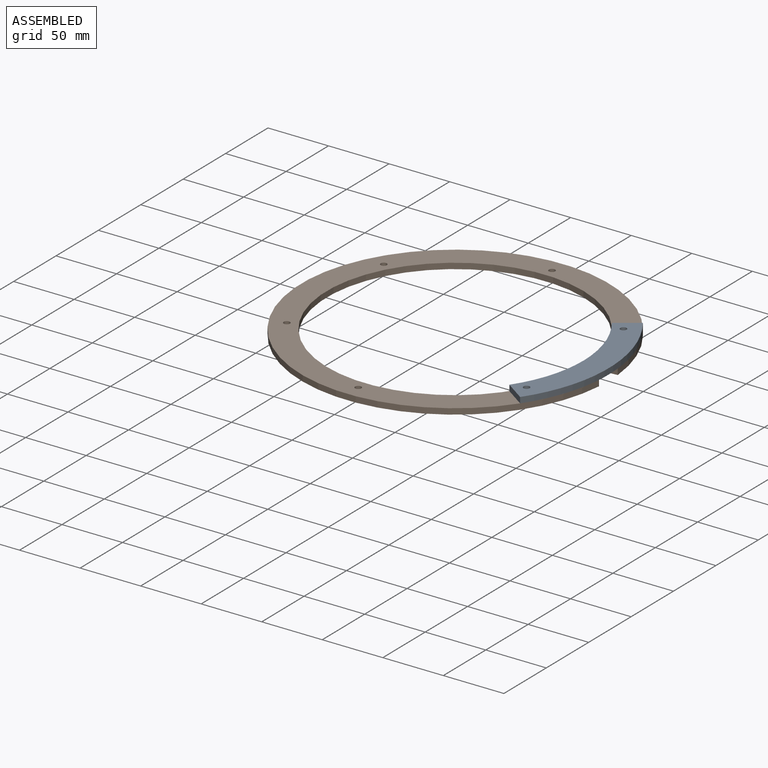
[diagram: assembled view]
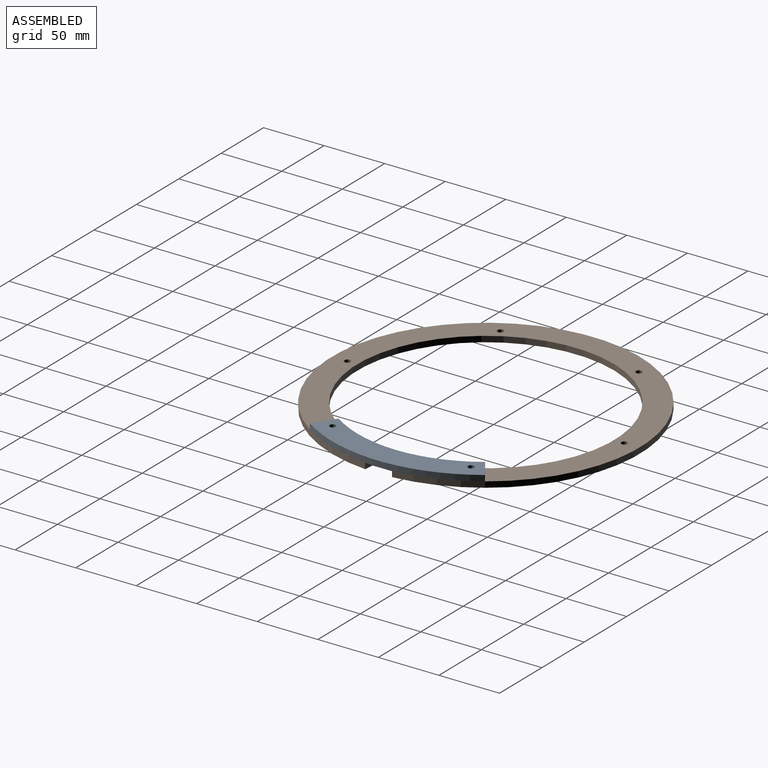
[diagram: assembled view, second angle]
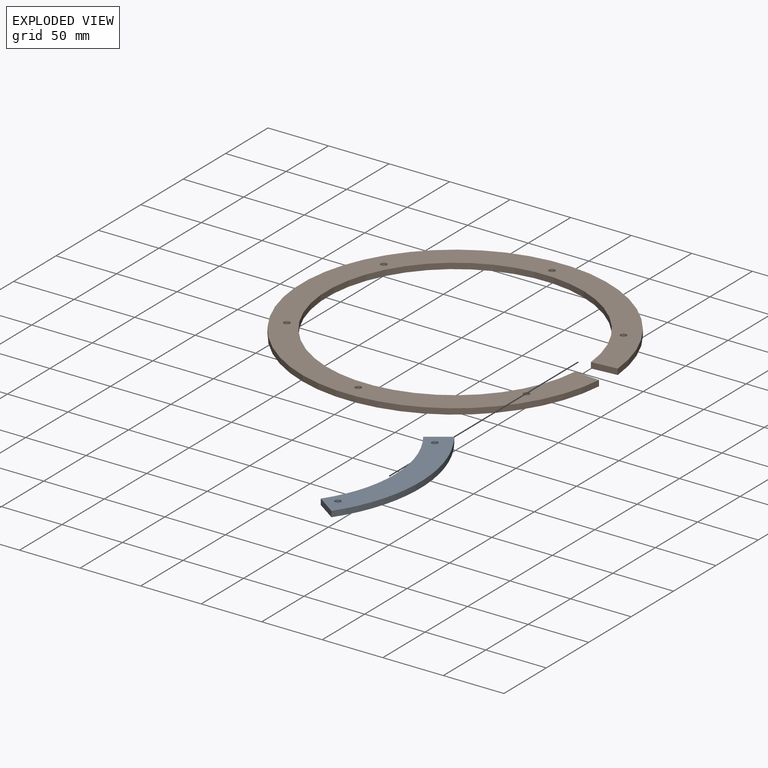
[diagram: exploded view]
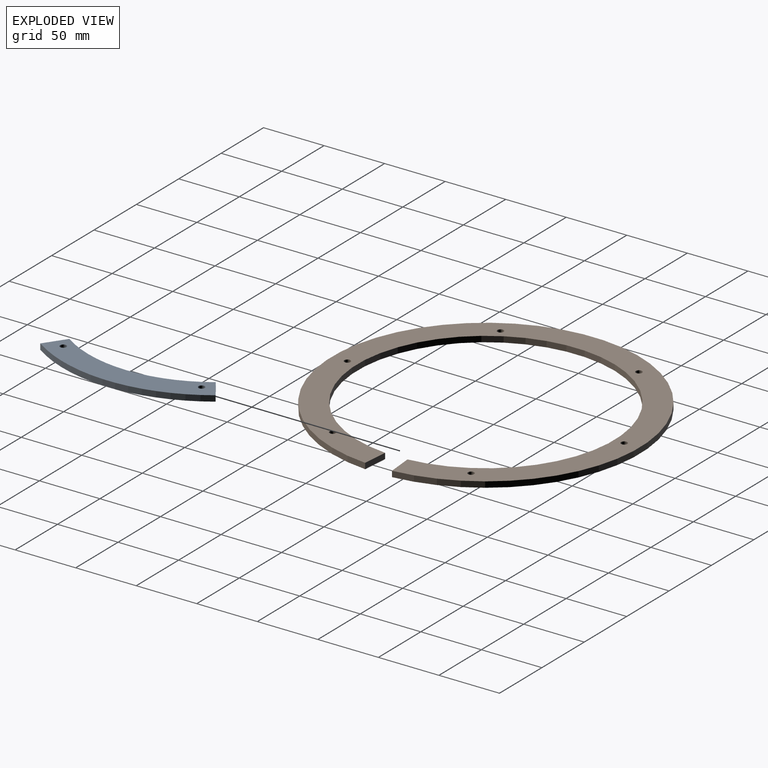
[diagram: exploded view, second angle]
ASSEMBLY  parts=2 mates=3
PART A: 8 faces, bbox 39.9x144.8x4.8 mm
  f0: plane 144.78x39.87mm, normal (0,0,-1), area 2920.9mm2, adj f1,f2,f3,f4,f6,f7
  f1: cylinder r=2.55mm len=5.11mm, axis (0,0,-1), area 76.4mm2, adj f0,f5
  f2: cylinder r=2.55mm len=5.11mm, axis (0,0,-1), area 76.4mm2, adj f0,f5
  f3: cylinder r=106.05mm len=120.89mm, axis (0,0,-1), area 612.6mm2, adj f0,f5,f6,f7
  f4: cylinder r=127mm len=144.78mm, axis (0,0,-1), area 733.7mm2, adj f0,f5,f6,f7
  f5: plane 144.78x39.87mm, normal (0,0,1), area 2920.9mm2, adj f1,f2,f3,f4,f6,f7
  f6: plane 17.22x11.94mm, normal (-0.57,0.82,0), area 99.8mm2, adj f0,f3,f4,f5
  f7: plane 17.22x11.94mm, normal (-0.57,-0.82,0), area 99.8mm2, adj f0,f3,f4,f5
PART B: 12 faces, bbox 253.5x254x4.8 mm
  f0: cylinder r=106.05mm len=212.09mm, axis (0,0,-1), area 3085.1mm2, adj f2,f8,f10,f11
  f1: cylinder r=127mm len=254mm, axis (0,0,-1), area 3694.7mm2, adj f2,f8,f10,f11
  f2: plane 254x253.52mm, normal (0,0,1), area 14792.8mm2, adj f0,f1,f3,f4,f5,f6,f7,f9
  f3: cylinder r=2.55mm len=5.11mm, axis (0,0,-1), area 76.4mm2, adj f2,f8
  f4: cylinder r=2.55mm len=5.11mm, axis (0,0,-1), area 76.4mm2, adj f2,f8
  f5: cylinder r=2.55mm len=5.11mm, axis (0,0,-1), area 76.4mm2, adj f2,f8
  f6: cylinder r=2.55mm len=5.11mm, axis (0,0,-1), area 76.4mm2, adj f2,f8
  f7: cylinder r=2.55mm len=5.11mm, axis (0,0,-1), area 76.4mm2, adj f2,f8
  f8: plane 254x253.52mm, normal (0,0,-1), area 14792.8mm2, adj f0,f1,f3,f4,f5,f6,f7,f9
  f9: cylinder r=2.55mm len=5.11mm, axis (0,0,-1), area 76.4mm2, adj f2,f8
  f10: plane 20.88x4.76mm, normal (0.09,1,0), area 99.8mm2, adj f0,f1,f2,f8
  f11: plane 20.88x4.76mm, normal (0.09,-1,0), area 99.8mm2, adj f0,f1,f2,f8
PLACE A rot(axis=(1,0,0),180deg) t=(-177.11,9.7,2.12)mm
PLACE B t=(-177.11,9.7,-7.41)mm
MATE cylindrical A.f3 <-> B.f0  axis (0,0,1) through (-177.11,9.7,-0.26)mm
MATE slider A.f2 <-> B.f3  axis (0,0,1) through (-78.12,66.85,-2.64)mm
MATE planar A.f5 <-> B.f2  axis (0,0,-1) through (-67.16,9.7,-2.64)mm
